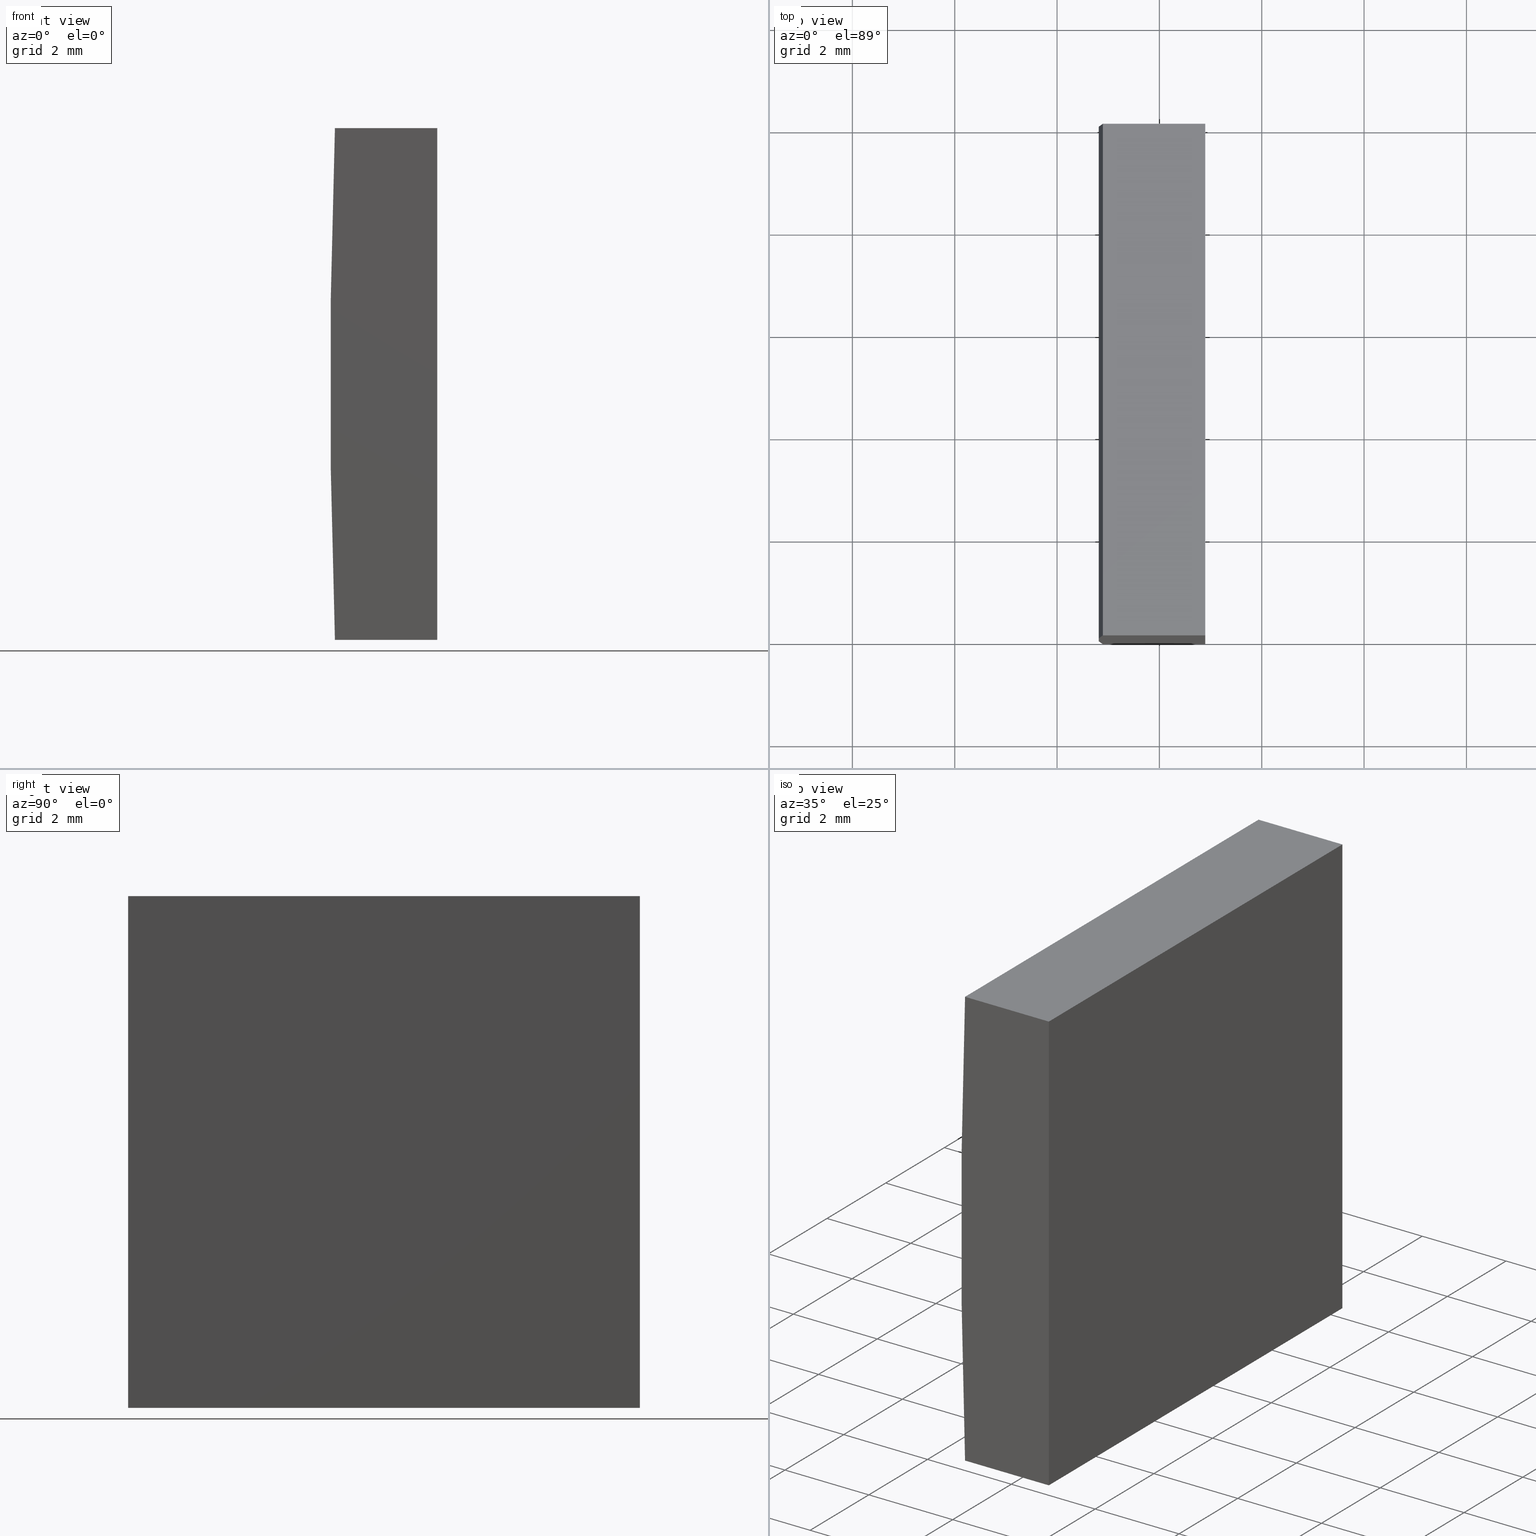
[diagram: canonical four-view strip — front | top / right | iso, engineering-drawing reading convention]
A machine part, canonical four-view strip (front | top / right | iso — engineering-drawing reading convention). The complete STEP part file that produces these views, byte-faithful:
ISO-10303-21;
HEADER;
FILE_DESCRIPTION (( 'STEP AP214' ),
    '1' );
FILE_NAME ('155274.STEP',
    '2019-06-25T06:29:59',
    ( 'user' ),
    ( '΢���й�' ),
    'SwSTEP 2.0',
    'SolidWorks 2016',
    '' );
FILE_SCHEMA (( 'AUTOMOTIVE_DESIGN' ));
ENDSEC;

DATA;
#1 = EDGE_CURVE ( 'NONE', #39, #191, #70, .T. ) ;
#2 = APPLICATION_CONTEXT ( 'automotive_design' ) ;
#3 = ORIENTED_EDGE ( 'NONE', *, *, #200, .T. ) ;
#4 = SURFACE_STYLE_FILL_AREA ( #203 ) ;
#5 = ORIENTED_EDGE ( 'NONE', *, *, #76, .F. ) ;
#6 = LINE ( 'NONE', #83, #196 ) ;
#7 = STYLED_ITEM ( 'NONE', ( #180 ), #71 ) ;
#8 = DIRECTION ( 'NONE',  ( -0.0000000000000000000, -1.000000000000000000, -0.0000000000000000000 ) ) ;
#9 = VECTOR ( 'NONE', #46, 1000.000000000000000 ) ;
#10 = PLANE ( 'NONE',  #67 ) ;
#11 = DIRECTION ( 'NONE',  ( -6.074284074018936100E-015, 0.0000000000000000000, 1.000000000000000000 ) ) ;
#12 = CARTESIAN_POINT ( 'NONE',  ( -131.1047956651487700, 10.00000000000000000, 5.000000000000000000 ) ) ;
#13 = CARTESIAN_POINT ( 'NONE',  ( -131.1047956651487700, 10.00000000000000000, -4.999999999999987600 ) ) ;
#14 = VECTOR ( 'NONE', #96, 1000.000000000000000 ) ;
#15 =( NAMED_UNIT ( * ) PLANE_ANGLE_UNIT ( ) SI_UNIT ( $, .RADIAN. ) );
#16 = SURFACE_STYLE_USAGE ( .BOTH. , #99 ) ;
#17 = EDGE_CURVE ( 'NONE', #131, #195, #155, .T. ) ;
#18 = EDGE_LOOP ( 'NONE', ( #49, #173, #54, #81 ) ) ;
#19 = DIRECTION ( 'NONE',  ( -1.000000000000000000, 0.0000000000000000000, -0.0000000000000000000 ) ) ;
#20 = EDGE_CURVE ( 'NONE', #202, #39, #119, .T. ) ;
#21 = PRODUCT_DEFINITION_CONTEXT ( 'detailed design', #105, 'design' ) ;
#22 = SURFACE_SIDE_STYLE ('',( #153 ) ) ;
#23 = DIRECTION ( 'NONE',  ( -0.0000000000000000000, -1.000000000000000000, -0.0000000000000000000 ) ) ;
#24 = PRODUCT_RELATED_PRODUCT_CATEGORY ( 'part', '', ( #186 ) ) ;
#25 = VECTOR ( 'NONE', #65, 1000.000000000000000 ) ;
#26 = DIRECTION ( 'NONE',  ( -0.0000000000000000000, -0.0000000000000000000, -1.000000000000000000 ) ) ;
#27 = CARTESIAN_POINT ( 'NONE',  ( -133.1038895803932300, 0.0000000000000000000, 5.000000000000000000 ) ) ;
#28 = MECHANICAL_DESIGN_GEOMETRIC_PRESENTATION_REPRESENTATION (  '', ( #50 ), #118 ) ;
#29 = CARTESIAN_POINT ( 'NONE',  ( -131.1047956651487700, 10.00000000000000000, -4.999999999999987600 ) ) ;
#30 = FACE_OUTER_BOUND ( 'NONE', #114, .T. ) ;
#31 = CARTESIAN_POINT ( 'NONE',  ( -133.1038895803932300, 10.00000000000000000, 5.000000000000000000 ) ) ;
#32 = DIRECTION ( 'NONE',  ( 0.0000000000000000000, 0.0000000000000000000, -1.000000000000000000 ) ) ;
#33 = DIRECTION ( 'NONE',  ( 1.000000000000000000, 0.0000000000000000000, 6.074284074018936100E-015 ) ) ;
#34 = COLOUR_RGB ( '',1.000000000000000000, 1.000000000000000000, 1.000000000000000000 ) ;
#35 = EDGE_CURVE ( 'NONE', #124, #143, #198, .T. ) ;
#36 = DIRECTION ( 'NONE',  ( 0.0000000000000000000, 0.0000000000000000000, 1.000000000000000000 ) ) ;
#37 = CLOSED_SHELL ( 'NONE', ( #94, #137, #103, #75, #175, #150 ) ) ;
#38 =( NAMED_UNIT ( * ) SI_UNIT ( $, .STERADIAN. ) SOLID_ANGLE_UNIT ( ) );
#39 = VERTEX_POINT ( 'NONE', #79 ) ;
#40 =( NAMED_UNIT ( * ) PLANE_ANGLE_UNIT ( ) SI_UNIT ( $, .RADIAN. ) );
#41 = EDGE_CURVE ( 'NONE', #177, #131, #77, .T. ) ;
#42 = EDGE_LOOP ( 'NONE', ( #159, #161, #85, #69 ) ) ;
#43 = DIRECTION ( 'NONE',  ( 0.0000000000000000000, 1.000000000000000000, 0.0000000000000000000 ) ) ;
#44 = LINE ( 'NONE', #27, #47 ) ;
#45 =( GEOMETRIC_REPRESENTATION_CONTEXT ( 3 ) GLOBAL_UNCERTAINTY_ASSIGNED_CONTEXT ( ( #134 ) ) GLOBAL_UNIT_ASSIGNED_CONTEXT ( ( #88, #151, #197 ) ) REPRESENTATION_CONTEXT ( 'NONE', 'WORKASPACE' ) );
#46 = DIRECTION ( 'NONE',  ( -0.0000000000000000000, -0.0000000000000000000, -1.000000000000000000 ) ) ;
#47 = VECTOR ( 'NONE', #74, 1000.000000000000000 ) ;
#48 = PRODUCT_CONTEXT ( 'NONE', #2, 'mechanical' ) ;
#49 = ORIENTED_EDGE ( 'NONE', *, *, #149, .T. ) ;
#50 = STYLED_ITEM ( 'NONE', ( #123 ), #82 ) ;
#51 = CARTESIAN_POINT ( 'NONE',  ( -133.1038895803932300, 10.00000000000000000, -5.000000000000000000 ) ) ;
#52 = LINE ( 'NONE', #29, #184 ) ;
#53 = CARTESIAN_POINT ( 'NONE',  ( 4.355204334851265500, 0.0000000000000000000, 4.286263797015675000E-017 ) ) ;
#54 = ORIENTED_EDGE ( 'NONE', *, *, #20, .F. ) ;
#55 = DIRECTION ( 'NONE',  ( 0.0000000000000000000, 0.0000000000000000000, 1.000000000000000000 ) ) ;
#56 = LINE ( 'NONE', #58, #25 ) ;
#57 = UNCERTAINTY_MEASURE_WITH_UNIT (LENGTH_MEASURE( 1.000000000000000100E-005 ), #178, 'distance_accuracy_value', 'NONE');
#58 = CARTESIAN_POINT ( 'NONE',  ( -133.1038895803932300, 10.00000000000000000, 5.000000000000000000 ) ) ;
#59 = LINE ( 'NONE', #12, #168 ) ;
#60 = FACE_OUTER_BOUND ( 'NONE', #189, .T. ) ;
#61 = ORIENTED_EDGE ( 'NONE', *, *, #35, .T. ) ;
#62 = AXIS2_PLACEMENT_3D ( 'NONE', #158, #98, #160 ) ;
#63 = DIRECTION ( 'NONE',  ( -0.0000000000000000000, -1.000000000000000000, -0.0000000000000000000 ) ) ;
#64 = CARTESIAN_POINT ( 'NONE',  ( -131.1047956651487700, 0.0000000000000000000, -4.999999999999987600 ) ) ;
#65 = DIRECTION ( 'NONE',  ( 1.000000000000000000, 0.0000000000000000000, 0.0000000000000000000 ) ) ;
#66 = DIRECTION ( 'NONE',  ( 0.0000000000000000000, 1.000000000000000000, 0.0000000000000000000 ) ) ;
#67 = AXIS2_PLACEMENT_3D ( 'NONE', #68, #43, #93 ) ;
#68 = CARTESIAN_POINT ( 'NONE',  ( 4.355204334851265500, 10.00000000000000000, 4.286263797015675000E-017 ) ) ;
#69 = ORIENTED_EDGE ( 'NONE', *, *, #140, .F. ) ;
#70 = LINE ( 'NONE', #31, #120 ) ;
#71 = MANIFOLD_SOLID_BREP ( '͹̨-����1', #37 ) ;
#72 = VECTOR ( 'NONE', #187, 1000.000000000000000 ) ;
#73 = VECTOR ( 'NONE', #26, 1000.000000000000000 ) ;
#74 = DIRECTION ( 'NONE',  ( 1.000000000000000000, 0.0000000000000000000, 0.0000000000000000000 ) ) ;
#75 = ADVANCED_FACE ( 'NONE', ( #30 ), #136, .F. ) ;
#76 = EDGE_CURVE ( 'NONE', #39, #124, #56, .T. ) ;
#77 = LINE ( 'NONE', #64, #73 ) ;
#78 = EDGE_CURVE ( 'NONE', #143, #131, #52, .T. ) ;
#79 = CARTESIAN_POINT ( 'NONE',  ( -133.1038895803932300, 10.00000000000000000, 5.000000000000000000 ) ) ;
#80 = PLANE ( 'NONE',  #185 ) ;
#81 = ORIENTED_EDGE ( 'NONE', *, *, #138, .T. ) ;
#82 = ADVANCED_BREP_SHAPE_REPRESENTATION ( '155274', ( #71, #62 ), #116 ) ;
#83 = CARTESIAN_POINT ( 'NONE',  ( -133.1038895803932300, 10.00000000000000000, -5.000000000000000000 ) ) ;
#84 = EDGE_LOOP ( 'NONE', ( #87, #102, #147, #3 ) ) ;
#85 = ORIENTED_EDGE ( 'NONE', *, *, #41, .F. ) ;
#86 = FACE_OUTER_BOUND ( 'NONE', #84, .T. ) ;
#87 = ORIENTED_EDGE ( 'NONE', *, *, #41, .T. ) ;
#88 =( LENGTH_UNIT ( ) NAMED_UNIT ( * ) SI_UNIT ( .MILLI., .METRE. ) );
#89 = ORIENTED_EDGE ( 'NONE', *, *, #112, .F. ) ;
#90 = DIRECTION ( 'NONE',  ( 0.0000000000000000000, 0.0000000000000000000, 1.000000000000000000 ) ) ;
#91 = CIRCLE ( 'NONE', #100, 137.5500000000000400 ) ;
#92 = AXIS2_PLACEMENT_3D ( 'NONE', #188, #111, #19 ) ;
#93 = DIRECTION ( 'NONE',  ( 0.0000000000000000000, -0.0000000000000000000, 1.000000000000000000 ) ) ;
#94 = ADVANCED_FACE ( 'NONE', ( #145 ), #172, .T. ) ;
#95 = EDGE_LOOP ( 'NONE', ( #127, #109, #61, #166 ) ) ;
#96 = DIRECTION ( 'NONE',  ( -1.000000000000000000, -0.0000000000000000000, -6.074284074018936100E-015 ) ) ;
#97 = PLANE ( 'NONE',  #183 ) ;
#98 = DIRECTION ( 'NONE',  ( 0.0000000000000000000, 0.0000000000000000000, 1.000000000000000000 ) ) ;
#99 = SURFACE_SIDE_STYLE ('',( #4 ) ) ;
#100 = AXIS2_PLACEMENT_3D ( 'NONE', #148, #66, #90 ) ;
#101 = SHAPE_DEFINITION_REPRESENTATION ( #163, #82 ) ;
#102 = ORIENTED_EDGE ( 'NONE', *, *, #78, .F. ) ;
#103 = ADVANCED_FACE ( 'NONE', ( #86 ), #80, .F. ) ;
#104 = MECHANICAL_DESIGN_GEOMETRIC_PRESENTATION_REPRESENTATION (  '', ( #7 ), #45 ) ;
#105 = APPLICATION_CONTEXT ( 'automotive_design' ) ;
#106 = PRESENTATION_LAYER_ASSIGNMENT (  '', '', ( #50 ) ) ;
#107 = CARTESIAN_POINT ( 'NONE',  ( -131.1047956651487700, 10.00000000000000000, -4.999999999999987600 ) ) ;
#108 =( NAMED_UNIT ( * ) SI_UNIT ( $, .STERADIAN. ) SOLID_ANGLE_UNIT ( ) );
#109 = ORIENTED_EDGE ( 'NONE', *, *, #76, .T. ) ;
#110 = ORIENTED_EDGE ( 'NONE', *, *, #17, .T. ) ;
#111 = DIRECTION ( 'NONE',  ( 0.0000000000000000000, 0.0000000000000000000, -1.000000000000000000 ) ) ;
#112 = EDGE_CURVE ( 'NONE', #143, #202, #164, .T. ) ;
#113 = DIRECTION ( 'NONE',  ( 0.0000000000000000000, 1.000000000000000000, 0.0000000000000000000 ) ) ;
#114 = EDGE_LOOP ( 'NONE', ( #110, #122, #89, #132 ) ) ;
#115 = APPLICATION_PROTOCOL_DEFINITION ( 'draft international standard', 'automotive_design', 1998, #2 ) ;
#116 =( GEOMETRIC_REPRESENTATION_CONTEXT ( 3 ) GLOBAL_UNCERTAINTY_ASSIGNED_CONTEXT ( ( #57 ) ) GLOBAL_UNIT_ASSIGNED_CONTEXT ( ( #178, #15, #108 ) ) REPRESENTATION_CONTEXT ( 'NONE', 'WORKASPACE' ) );
#117 = FACE_OUTER_BOUND ( 'NONE', #42, .T. ) ;
#118 =( GEOMETRIC_REPRESENTATION_CONTEXT ( 3 ) GLOBAL_UNCERTAINTY_ASSIGNED_CONTEXT ( ( #156 ) ) GLOBAL_UNIT_ASSIGNED_CONTEXT ( ( #201, #40, #38 ) ) REPRESENTATION_CONTEXT ( 'NONE', 'WORKASPACE' ) );
#119 = CIRCLE ( 'NONE', #171, 137.5500000000000400 ) ;
#120 = VECTOR ( 'NONE', #8, 1000.000000000000000 ) ;
#121 = DIRECTION ( 'NONE',  ( -0.0000000000000000000, -1.000000000000000000, -0.0000000000000000000 ) ) ;
#122 = ORIENTED_EDGE ( 'NONE', *, *, #138, .F. ) ;
#123 = PRESENTATION_STYLE_ASSIGNMENT (( #16 ) ) ;
#124 = VERTEX_POINT ( 'NONE', #169 ) ;
#125 = ORIENTED_EDGE ( 'NONE', *, *, #200, .F. ) ;
#126 = CARTESIAN_POINT ( 'NONE',  ( 4.355204334851265500, 10.00000000000000000, 4.286263797015675000E-017 ) ) ;
#127 = ORIENTED_EDGE ( 'NONE', *, *, #20, .T. ) ;
#128 = CARTESIAN_POINT ( 'NONE',  ( -133.1038895803932300, 10.00000000000000000, -5.000000000000000000 ) ) ;
#129 = FILL_AREA_STYLE ('',( #146 ) ) ;
#130 = CARTESIAN_POINT ( 'NONE',  ( -133.1038895803932300, 0.0000000000000000000, -5.000000000000000000 ) ) ;
#131 = VERTEX_POINT ( 'NONE', #162 ) ;
#132 = ORIENTED_EDGE ( 'NONE', *, *, #78, .T. ) ;
#133 = FACE_OUTER_BOUND ( 'NONE', #95, .T. ) ;
#134 = UNCERTAINTY_MEASURE_WITH_UNIT (LENGTH_MEASURE( 1.000000000000000100E-005 ), #88, 'distance_accuracy_value', 'NONE');
#135 = PLANE ( 'NONE',  #92 ) ;
#136 = PLANE ( 'NONE',  #154 ) ;
#137 = ADVANCED_FACE ( 'NONE', ( #60 ), #135, .F. ) ;
#138 = EDGE_CURVE ( 'NONE', #202, #195, #6, .T. ) ;
#139 = CARTESIAN_POINT ( 'NONE',  ( -131.1047956651487700, 10.00000000000000000, -4.999999999999987600 ) ) ;
#140 = EDGE_CURVE ( 'NONE', #191, #177, #44, .T. ) ;
#141 = CARTESIAN_POINT ( 'NONE',  ( -133.1038895803932300, 0.0000000000000000000, 5.000000000000000000 ) ) ;
#142 = CARTESIAN_POINT ( 'NONE',  ( -131.1047956651487700, 0.0000000000000000000, 5.000000000000000000 ) ) ;
#143 = VERTEX_POINT ( 'NONE', #139 ) ;
#144 = CARTESIAN_POINT ( 'NONE',  ( 4.355204334851265500, 10.00000000000000000, 4.286263797015675000E-017 ) ) ;
#145 = FACE_OUTER_BOUND ( 'NONE', #18, .T. ) ;
#146 = FILL_AREA_STYLE_COLOUR ( '', #34 ) ;
#147 = ORIENTED_EDGE ( 'NONE', *, *, #35, .F. ) ;
#148 = CARTESIAN_POINT ( 'NONE',  ( 4.355204334851265500, 0.0000000000000000000, 4.286263797015675000E-017 ) ) ;
#149 = EDGE_CURVE ( 'NONE', #195, #191, #91, .T. ) ;
#150 = ADVANCED_FACE ( 'NONE', ( #117 ), #97, .F. ) ;
#151 =( NAMED_UNIT ( * ) PLANE_ANGLE_UNIT ( ) SI_UNIT ( $, .RADIAN. ) );
#152 = PRODUCT_DEFINITION ( 'δ֪', '', #192, #21 ) ;
#153 = SURFACE_STYLE_FILL_AREA ( #129 ) ;
#154 = AXIS2_PLACEMENT_3D ( 'NONE', #194, #11, #33 ) ;
#155 = LINE ( 'NONE', #181, #72 ) ;
#156 = UNCERTAINTY_MEASURE_WITH_UNIT (LENGTH_MEASURE( 1.000000000000000100E-005 ), #201, 'distance_accuracy_value', 'NONE');
#157 = APPLICATION_PROTOCOL_DEFINITION ( 'draft international standard', 'automotive_design', 1998, #105 ) ;
#158 = CARTESIAN_POINT ( 'NONE',  ( 0.0000000000000000000, 0.0000000000000000000, 0.0000000000000000000 ) ) ;
#159 = ORIENTED_EDGE ( 'NONE', *, *, #149, .F. ) ;
#160 = DIRECTION ( 'NONE',  ( 1.000000000000000000, 0.0000000000000000000, 0.0000000000000000000 ) ) ;
#161 = ORIENTED_EDGE ( 'NONE', *, *, #17, .F. ) ;
#162 = CARTESIAN_POINT ( 'NONE',  ( -131.1047956651487700, 0.0000000000000000000, -4.999999999999987600 ) ) ;
#163 = PRODUCT_DEFINITION_SHAPE ( 'NONE', 'NONE',  #152 ) ;
#164 = LINE ( 'NONE', #128, #14 ) ;
#165 = ORIENTED_EDGE ( 'NONE', *, *, #1, .T. ) ;
#166 = ORIENTED_EDGE ( 'NONE', *, *, #112, .T. ) ;
#167 = DIRECTION ( 'NONE',  ( 0.0000000000000000000, 1.000000000000000000, 0.0000000000000000000 ) ) ;
#168 = VECTOR ( 'NONE', #63, 1000.000000000000000 ) ;
#169 = CARTESIAN_POINT ( 'NONE',  ( -131.1047956651487700, 10.00000000000000000, 5.000000000000000000 ) ) ;
#170 = FILL_AREA_STYLE_COLOUR ( '', #182 ) ;
#171 = AXIS2_PLACEMENT_3D ( 'NONE', #144, #113, #36 ) ;
#172 = CYLINDRICAL_SURFACE ( 'NONE', #190, 137.5500000000000400 ) ;
#173 = ORIENTED_EDGE ( 'NONE', *, *, #1, .F. ) ;
#174 = PRESENTATION_LAYER_ASSIGNMENT (  '', '', ( #7 ) ) ;
#175 = ADVANCED_FACE ( 'NONE', ( #133 ), #10, .T. ) ;
#176 = SURFACE_STYLE_USAGE ( .BOTH. , #22 ) ;
#177 = VERTEX_POINT ( 'NONE', #142 ) ;
#178 =( LENGTH_UNIT ( ) NAMED_UNIT ( * ) SI_UNIT ( .MILLI., .METRE. ) );
#179 = DIRECTION ( 'NONE',  ( 0.0000000000000000000, -0.0000000000000000000, 1.000000000000000000 ) ) ;
#180 = PRESENTATION_STYLE_ASSIGNMENT (( #176 ) ) ;
#181 = CARTESIAN_POINT ( 'NONE',  ( -133.1038895803932300, 0.0000000000000000000, -5.000000000000000000 ) ) ;
#182 = COLOUR_RGB ( '',1.000000000000000000, 1.000000000000000000, 1.000000000000000000 ) ;
#183 = AXIS2_PLACEMENT_3D ( 'NONE', #53, #167, #179 ) ;
#184 = VECTOR ( 'NONE', #204, 1000.000000000000000 ) ;
#185 = AXIS2_PLACEMENT_3D ( 'NONE', #13, #193, #55 ) ;
#186 = PRODUCT ( '155274', '155274', '', ( #48 ) ) ;
#187 = DIRECTION ( 'NONE',  ( -1.000000000000000000, -0.0000000000000000000, -6.074284074018936100E-015 ) ) ;
#188 = CARTESIAN_POINT ( 'NONE',  ( -133.1038895803932300, 10.00000000000000000, 5.000000000000000000 ) ) ;
#189 = EDGE_LOOP ( 'NONE', ( #199, #125, #5, #165 ) ) ;
#190 = AXIS2_PLACEMENT_3D ( 'NONE', #126, #23, #32 ) ;
#191 = VERTEX_POINT ( 'NONE', #141 ) ;
#192 = PRODUCT_DEFINITION_FORMATION_WITH_SPECIFIED_SOURCE ( '�κ�', '', #186, .NOT_KNOWN. ) ;
#193 = DIRECTION ( 'NONE',  ( -1.000000000000000000, 0.0000000000000000000, 0.0000000000000000000 ) ) ;
#194 = CARTESIAN_POINT ( 'NONE',  ( -133.1038895803932300, 10.00000000000000000, -5.000000000000000000 ) ) ;
#195 = VERTEX_POINT ( 'NONE', #130 ) ;
#196 = VECTOR ( 'NONE', #121, 1000.000000000000000 ) ;
#197 =( NAMED_UNIT ( * ) SI_UNIT ( $, .STERADIAN. ) SOLID_ANGLE_UNIT ( ) );
#198 = LINE ( 'NONE', #107, #9 ) ;
#199 = ORIENTED_EDGE ( 'NONE', *, *, #140, .T. ) ;
#200 = EDGE_CURVE ( 'NONE', #124, #177, #59, .T. ) ;
#201 =( LENGTH_UNIT ( ) NAMED_UNIT ( * ) SI_UNIT ( .MILLI., .METRE. ) );
#202 = VERTEX_POINT ( 'NONE', #51 ) ;
#203 = FILL_AREA_STYLE ('',( #170 ) ) ;
#204 = DIRECTION ( 'NONE',  ( -0.0000000000000000000, -1.000000000000000000, -0.0000000000000000000 ) ) ;
ENDSEC;
END-ISO-10303-21;
